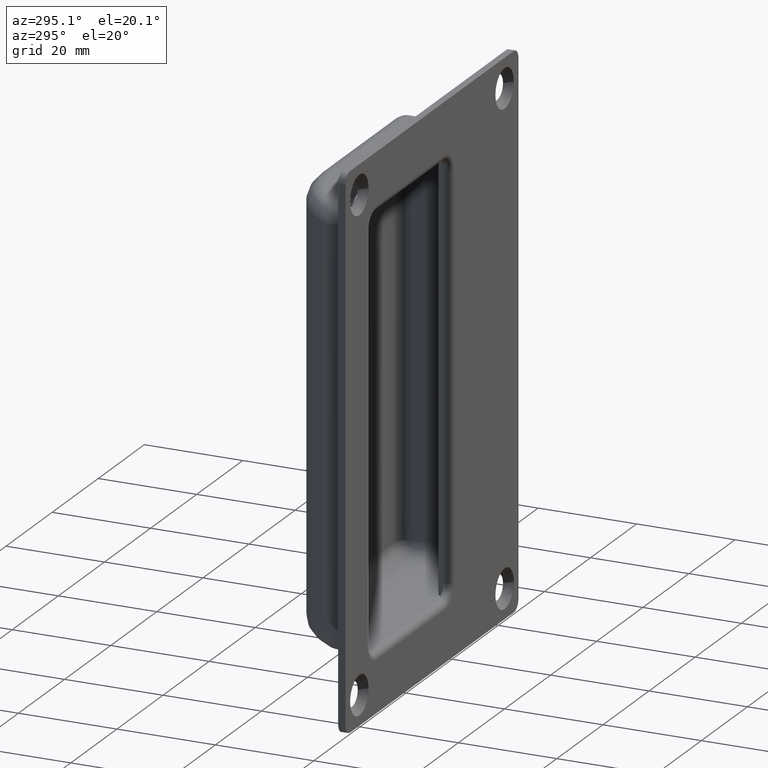
[diagram: clean part render]
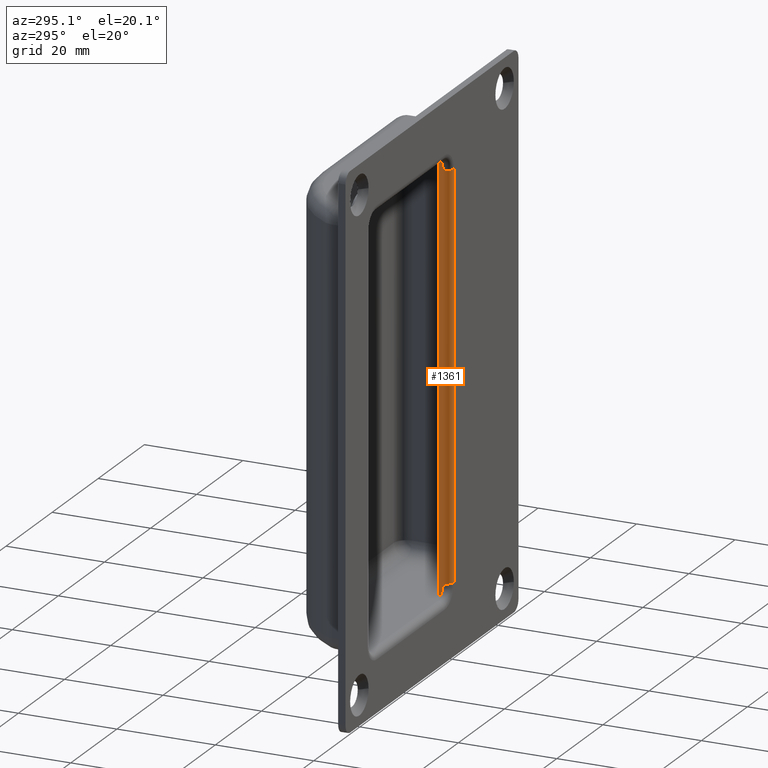
[diagram: same view with one face highlighted and labeled with its STEP entity id]
A machine part, auxiliary view. The second image highlights one B-rep face of the part: STEP entity #1361.
In plain terms, the highlighted cylindrical surface (edge-blend (fillet) strip) has radius 1.5 mm, axis along (0, 0, -1).
Its self-contained STEP definition (entity closure, byte-faithful):
#136=LINE('',#2292,#232);
#147=LINE('',#2348,#243);
#148=LINE('',#2349,#244);
#149=LINE('',#2350,#245);
#232=VECTOR('',#1879,86.);
#243=VECTOR('',#1942,81.);
#244=VECTOR('',#1943,2.50000000000001);
#245=VECTOR('',#1944,2.5);
#292=CYLINDRICAL_SURFACE('',#1530,1.5);
#365=FACE_OUTER_BOUND('',#451,.T.);
#451=EDGE_LOOP('',(#1185,#1186,#1187,#1188,#1189,#1190,#1191,#1192));
#545=CIRCLE('',#1503,1.5);
#546=CIRCLE('',#1506,1.5);
#547=CIRCLE('',#1508,1.5);
#561=CIRCLE('',#1528,1.49999999999996);
#651=VERTEX_POINT('',#2282);
#652=VERTEX_POINT('',#2283);
#655=VERTEX_POINT('',#2291);
#657=VERTEX_POINT('',#2297);
#659=VERTEX_POINT('',#2303);
#660=VERTEX_POINT('',#2304);
#673=VERTEX_POINT('',#2342);
#674=VERTEX_POINT('',#2344);
#825=EDGE_CURVE('',#651,#652,#545,.T.);
#829=EDGE_CURVE('',#655,#651,#136,.T.);
#832=EDGE_CURVE('',#657,#655,#546,.T.);
#835=EDGE_CURVE('',#659,#660,#547,.T.);
#855=EDGE_CURVE('',#673,#674,#561,.T.);
#857=EDGE_CURVE('',#659,#674,#147,.T.);
#858=EDGE_CURVE('',#657,#673,#148,.T.);
#859=EDGE_CURVE('',#660,#652,#149,.T.);
#1185=ORIENTED_EDGE('',*,*,#835,.F.);
#1186=ORIENTED_EDGE('',*,*,#857,.T.);
#1187=ORIENTED_EDGE('',*,*,#855,.F.);
#1188=ORIENTED_EDGE('',*,*,#858,.F.);
#1189=ORIENTED_EDGE('',*,*,#832,.T.);
#1190=ORIENTED_EDGE('',*,*,#829,.T.);
#1191=ORIENTED_EDGE('',*,*,#825,.T.);
#1192=ORIENTED_EDGE('',*,*,#859,.F.);
#1361=ADVANCED_FACE('',(#365),#292,.T.);
#1503=AXIS2_PLACEMENT_3D('',#2284,#1872,#1873);
#1506=AXIS2_PLACEMENT_3D('',#2298,#1884,#1885);
#1508=AXIS2_PLACEMENT_3D('',#2305,#1890,#1891);
#1528=AXIS2_PLACEMENT_3D('',#2345,#1936,#1937);
#1530=AXIS2_PLACEMENT_3D('',#2347,#1940,#1941);
#1872=DIRECTION('center_axis',(0.,0.,1.));
#1873=DIRECTION('ref_axis',(-0.707106781186548,0.707106781186547,0.));
#1879=DIRECTION('',(0.,0.,-1.));
#1884=DIRECTION('center_axis',(0.,0.,-1.));
#1885=DIRECTION('ref_axis',(-0.707106781186548,0.707106781186547,0.));
#1890=DIRECTION('center_axis',(0.,0.,-1.));
#1891=DIRECTION('ref_axis',(0.,-1.,0.));
#1936=DIRECTION('center_axis',(5.92118946466766E-15,0.,1.));
#1937=DIRECTION('ref_axis',(-1.,0.,5.92118946466766E-15));
#1940=DIRECTION('center_axis',(0.,0.,-1.));
#1941=DIRECTION('ref_axis',(-0.707106781186546,-0.707106781186549,0.));
#1942=DIRECTION('',(0.,0.,1.));
#1943=DIRECTION('',(0.,0.,-1.));
#1944=DIRECTION('',(0.,0.,-1.));
#2282=CARTESIAN_POINT('',(36.5,1.,-43.));
#2283=CARTESIAN_POINT('',(35.,-0.5,-43.));
#2284=CARTESIAN_POINT('Origin',(36.5,-0.5,-43.));
#2291=CARTESIAN_POINT('',(36.5,1.,43.));
#2292=CARTESIAN_POINT('',(36.5,1.,-1.24999999999998));
#2297=CARTESIAN_POINT('',(35.,-0.5,43.));
#2298=CARTESIAN_POINT('Origin',(36.5,-0.5,43.));
#2303=CARTESIAN_POINT('',(36.5,-2.,-40.5));
#2304=CARTESIAN_POINT('',(35.,-0.5,-40.5));
#2305=CARTESIAN_POINT('Origin',(36.5,-0.5,-40.5));
#2342=CARTESIAN_POINT('',(35.,-0.5,40.5));
#2344=CARTESIAN_POINT('',(36.5,-2.,40.5));
#2345=CARTESIAN_POINT('Origin',(36.5,-0.5,40.5));
#2347=CARTESIAN_POINT('Origin',(36.5,-0.5,20.25));
#2348=CARTESIAN_POINT('',(36.5,-2.,20.25));
#2349=CARTESIAN_POINT('',(35.,-0.5,1.97491140328234E-14));
#2350=CARTESIAN_POINT('',(35.,-0.5,1.97491140328234E-14));